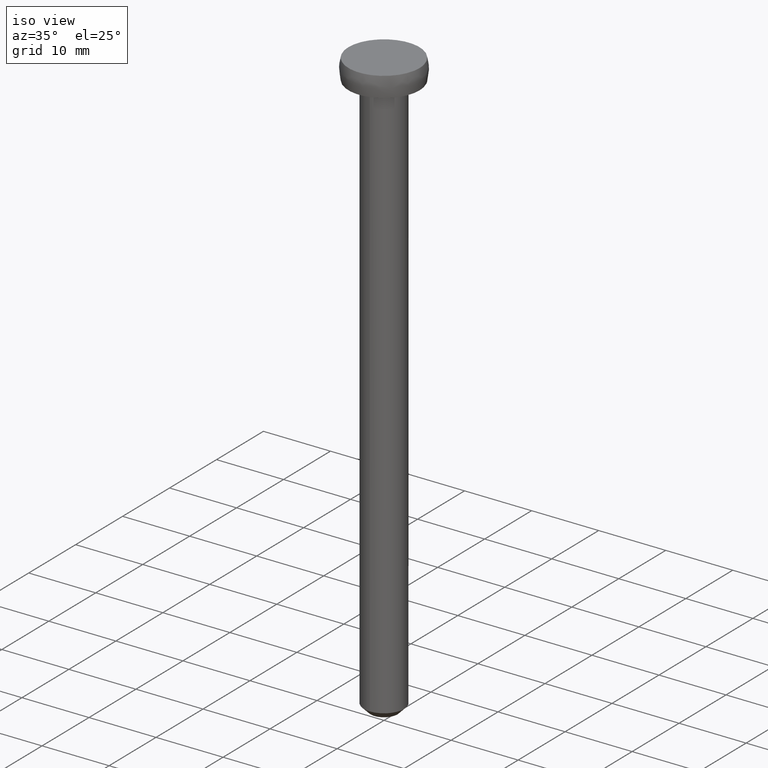
[diagram: clean part render]
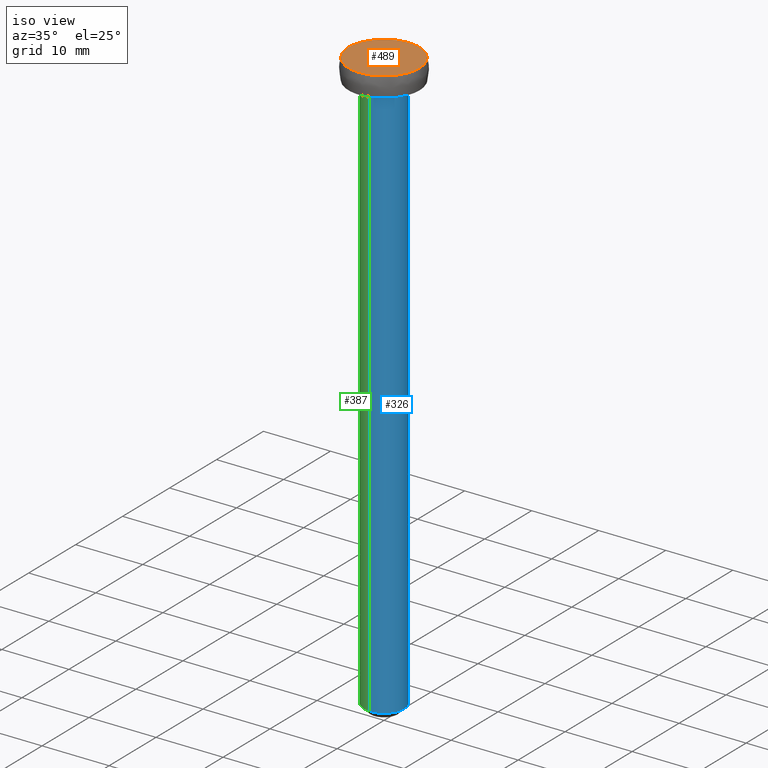
[diagram: same view with three faces highlighted in distinct colors, each labeled with its STEP entity id]
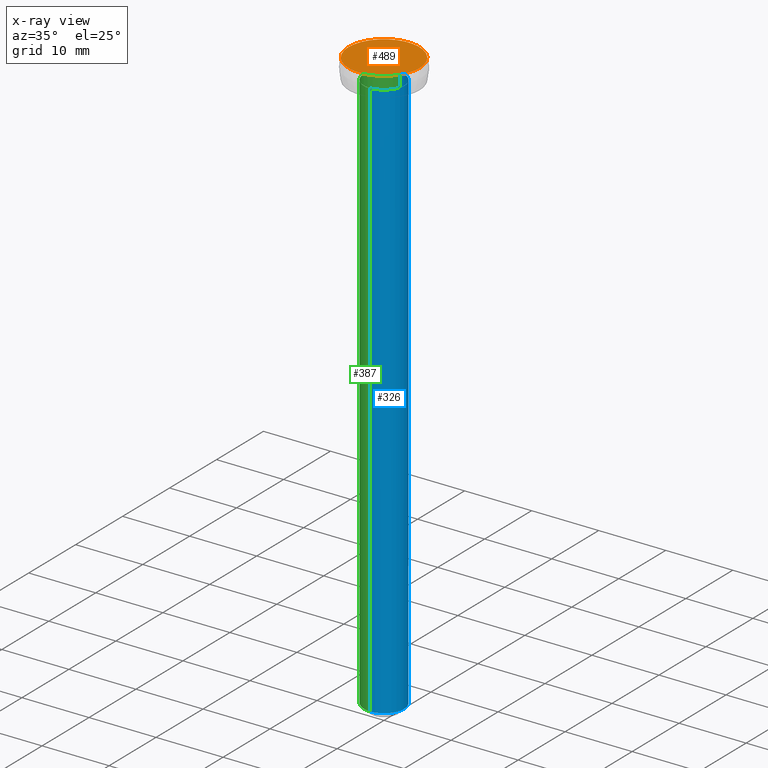
[diagram: x-ray of the same camera — body ghosted, the three highlighted faces saturated]
A machine part, iso view with three faces highlighted in distinct colors.
The next image is the same camera in x-ray (body ghosted, the three faces saturated) — at least one of them is partly hidden behind the body in this view.
Their STEP definitions:

[orange] entity #489 — the highlighted face is a freeform B-spline surface patch.
#448=CARTESIAN_POINT('',(-5.820123029288085,-5.820123029288009,88.0));
#449=CARTESIAN_POINT('',(5.820123313146373,-5.820123029288009,88.0));
#450=CARTESIAN_POINT('',(-5.820123029288085,5.820123313146296,88.0));
#451=CARTESIAN_POINT('',(5.820123313146373,5.820123313146296,88.0));
#452=B_SPLINE_SURFACE_WITH_KNOTS('',1,1,((#448,#450),(#449,#451)),.UNSPECIFIED.,.F.,.F.,.U.,(2,2),(2,2),(0.0,11.640246342434461),(0.0,11.640246342434310),.UNSPECIFIED.);
#453=CARTESIAN_POINT('',(5.291502000000000,0.0,88.0));
#454=VERTEX_POINT('',#453);
#455=CARTESIAN_POINT('',(-5.291502000000000,0.0,88.0));
#456=VERTEX_POINT('',#455);
#457=CARTESIAN_POINT('',(5.291502000000000,0.0,88.0));
#458=CARTESIAN_POINT('',(5.291502000000000,-5.291502000000000,88.0));
#459=CARTESIAN_POINT('',(0.0,-5.291502000000000,88.0));
#460=CARTESIAN_POINT('',(-5.291502000000000,-5.291502000000000,88.0));
#461=CARTESIAN_POINT('',(-5.291502000000000,0.0,88.0));
#469=(BOUNDED_CURVE()B_SPLINE_CURVE(2,(#457,#458,#459,#460,#461),.UNSPECIFIED.,.F.,.U.)B_SPLINE_CURVE_WITH_KNOTS((3,2,3),(0.500000000000000,0.750000000000000,1.0),.UNSPECIFIED.)CURVE()GEOMETRIC_REPRESENTATION_ITEM()RATIONAL_B_SPLINE_CURVE((1.0,0.707106781186548,1.0,0.707106781186548,1.0))REPRESENTATION_ITEM(''));
#470=EDGE_CURVE('',#454,#456,#469,.T.);
#471=ORIENTED_EDGE('',*,*,#470,.F.);
#472=CARTESIAN_POINT('',(-5.291502000000000,0.0,88.0));
#473=CARTESIAN_POINT('',(-5.291502000000000,5.291502000000000,88.0));
#474=CARTESIAN_POINT('',(0.0,5.291502000000000,88.0));
#475=CARTESIAN_POINT('',(5.291502000000000,5.291502000000000,88.0));
#476=CARTESIAN_POINT('',(5.291502000000000,0.0,88.0));
#484=(BOUNDED_CURVE()B_SPLINE_CURVE(2,(#472,#473,#474,#475,#476),.UNSPECIFIED.,.F.,.U.)B_SPLINE_CURVE_WITH_KNOTS((3,2,3),(0.0,0.250000000000000,0.500000000000000),.UNSPECIFIED.)CURVE()GEOMETRIC_REPRESENTATION_ITEM()RATIONAL_B_SPLINE_CURVE((1.0,0.707106781186548,1.0,0.707106781186548,1.0))REPRESENTATION_ITEM(''));
#485=EDGE_CURVE('',#456,#454,#484,.T.);
#486=ORIENTED_EDGE('',*,*,#485,.F.);
#487=EDGE_LOOP('',(#471,#486));
#488=FACE_OUTER_BOUND('',#487,.T.);
#489=ADVANCED_FACE('',(#488),#452,.T.);

[blue] entity #326 — the highlighted face is a freeform B-spline surface patch.
#150=CARTESIAN_POINT('',(0.372384006447590,2.976798641450584,1.000000000000000));
#151=VERTEX_POINT('',#150);
#167=CARTESIAN_POINT('',(3.0,0.0,1.0));
#168=VERTEX_POINT('',#167);
#169=CARTESIAN_POINT('',(3.0,0.0,1.0));
#170=CARTESIAN_POINT('',(3.0,2.648095800077549,1.0));
#171=CARTESIAN_POINT('',(0.372384006447590,2.976798641450584,1.000000000000000));
#179=(BOUNDED_CURVE()B_SPLINE_CURVE(2,(#169,#170,#171),.UNSPECIFIED.,.F.,.U.)B_SPLINE_CURVE_WITH_KNOTS((3,3),(0.500000000000000,0.728526071005719),.UNSPECIFIED.)CURVE()GEOMETRIC_REPRESENTATION_ITEM()RATIONAL_B_SPLINE_CURVE((1.0,0.732265053921373,0.954005430228960))REPRESENTATION_ITEM(''));
#180=EDGE_CURVE('',#168,#151,#179,.T.);
#182=CARTESIAN_POINT('',(-0.026179606802574,-2.999885769189831,1.000000000000000));
#183=VERTEX_POINT('',#182);
#184=CARTESIAN_POINT('',(-0.026179606802574,-2.999885769189831,1.000000000000000));
#185=CARTESIAN_POINT('',(-0.013090052769574,-3.000000000000000,1.0));
#186=CARTESIAN_POINT('',(0.0,-3.0,1.0));
#187=CARTESIAN_POINT('',(3.0,-3.0,1.0));
#188=CARTESIAN_POINT('',(3.0,0.0,1.0));
#196=(BOUNDED_CURVE()B_SPLINE_CURVE(2,(#184,#185,#186,#187,#188),.UNSPECIFIED.,.F.,.U.)B_SPLINE_CURVE_WITH_KNOTS((3,2,3),(0.248460105628908,0.250000000000000,0.500000000000000),.UNSPECIFIED.)CURVE()GEOMETRIC_REPRESENTATION_ITEM()RATIONAL_B_SPLINE_CURVE((0.996414028016849,0.998195901524072,1.0,0.707106781186548,1.0))REPRESENTATION_ITEM(''));
#197=EDGE_CURVE('',#183,#168,#196,.T.);
#260=CARTESIAN_POINT('',(0.372384006239488,2.976798641476615,87.100000000000023));
#261=CARTESIAN_POINT('',(3.023198491507334,2.645193774399663,87.100000000000023));
#262=CARTESIAN_POINT('',(2.999885769192513,-0.026179606495122,87.100000000000023));
#263=CARTESIAN_POINT('',(2.973706162697392,-3.026065375687634,87.100000000000023));
#264=CARTESIAN_POINT('',(-0.026179606495122,-2.999885769192513,87.100000000000023));
#265=CARTESIAN_POINT('',(0.372384006239488,2.976798641476615,-1.152500000000004));
#266=CARTESIAN_POINT('',(3.023198491507334,2.645193774399663,-1.152500000000003));
#267=CARTESIAN_POINT('',(2.999885769192513,-0.026179606495122,-1.152500000000003));
#268=CARTESIAN_POINT('',(2.973706162697392,-3.026065375687634,-1.152500000000003));
#269=CARTESIAN_POINT('',(-0.026179606495122,-2.999885769192513,-1.152500000000003));
#277=(BOUNDED_SURFACE()B_SPLINE_SURFACE(2,1,((#260,#265),(#261,#266),(#262,#267),(#263,#268),(#264,#269)),.UNSPECIFIED.,.F.,.F.,.U.)B_SPLINE_SURFACE_WITH_KNOTS((3,2,3),(2,2),(0.0,4.572917728598967,9.543480477076107),(0.0,88.252500000000040),.UNSPECIFIED.)GEOMETRIC_REPRESENTATION_ITEM()RATIONAL_B_SPLINE_SURFACE(((0.956886118190660,0.956886118190660),(0.730538238691624,0.730538238691624),(1.0,1.0),(0.707106781186548,0.707106781186548),(1.0,1.0)))REPRESENTATION_ITEM('')SURFACE());
#278=CARTESIAN_POINT('',(0.372384006388623,2.976798641457960,85.0));
#279=VERTEX_POINT('',#278);
#280=CARTESIAN_POINT('',(3.0,0.0,85.0));
#281=VERTEX_POINT('',#280);
#282=CARTESIAN_POINT('',(0.372384006388623,2.976798641457960,85.0));
#283=CARTESIAN_POINT('',(3.000000000000000,2.648095800183283,85.0));
#284=CARTESIAN_POINT('',(3.0,0.0,85.0));
#292=(BOUNDED_CURVE()B_SPLINE_CURVE(2,(#282,#283,#284),.UNSPECIFIED.,.F.,.U.)B_SPLINE_CURVE_WITH_KNOTS((3,3),(0.271473928987599,0.500000000000000),.UNSPECIFIED.)CURVE()GEOMETRIC_REPRESENTATION_ITEM()RATIONAL_B_SPLINE_CURVE((0.954005430241926,0.732265053913545,1.0))REPRESENTATION_ITEM(''));
#293=EDGE_CURVE('',#279,#281,#292,.T.);
#294=ORIENTED_EDGE('',*,*,#293,.T.);
#295=CARTESIAN_POINT('',(-0.026179606832162,-2.999885769189572,85.0));
#296=VERTEX_POINT('',#295);
#297=CARTESIAN_POINT('',(3.0,0.0,85.0));
#298=CARTESIAN_POINT('',(3.0,-3.0,85.0));
#299=CARTESIAN_POINT('',(0.0,-3.0,85.0));
#300=CARTESIAN_POINT('',(-0.013090052799159,-3.000000000000000,85.000000000000014));
#301=CARTESIAN_POINT('',(-0.026179606832162,-2.999885769189572,85.0));
#309=(BOUNDED_CURVE()B_SPLINE_CURVE(2,(#297,#298,#299,#300,#301),.UNSPECIFIED.,.F.,.U.)B_SPLINE_CURVE_WITH_KNOTS((3,2,3),(0.500000000000000,0.750000000000000,0.751539894374566),.UNSPECIFIED.)CURVE()GEOMETRIC_REPRESENTATION_ITEM()RATIONAL_B_SPLINE_CURVE((1.0,0.707106781186548,1.0,0.998195901520002,0.996414028008809))REPRESENTATION_ITEM(''));
#310=EDGE_CURVE('',#281,#296,#309,.T.);
#311=ORIENTED_EDGE('',*,*,#310,.T.);
#312=CARTESIAN_POINT('',(-0.026179606832162,-2.999885769189572,85.0));
#313=CARTESIAN_POINT('',(-0.026179606802574,-2.999885769189831,1.000000000000000));
#314=QUASI_UNIFORM_CURVE('',1,(#312,#313),.UNSPECIFIED.,.F.,.U.);
#315=EDGE_CURVE('',#296,#183,#314,.T.);
#316=ORIENTED_EDGE('',*,*,#315,.T.);
#317=ORIENTED_EDGE('',*,*,#197,.T.);
#318=ORIENTED_EDGE('',*,*,#180,.T.);
#319=CARTESIAN_POINT('',(0.372384006388623,2.976798641457960,85.0));
#320=CARTESIAN_POINT('',(0.372384006447590,2.976798641450584,1.000000000000000));
#321=QUASI_UNIFORM_CURVE('',1,(#319,#320),.UNSPECIFIED.,.F.,.U.);
#322=EDGE_CURVE('',#279,#151,#321,.T.);
#323=ORIENTED_EDGE('',*,*,#322,.F.);
#324=EDGE_LOOP('',(#294,#311,#316,#317,#318,#323));
#325=FACE_OUTER_BOUND('',#324,.T.);
#326=ADVANCED_FACE('',(#325),#277,.T.);

[green] entity #387 — the highlighted face is a freeform B-spline surface patch.
#70=CARTESIAN_POINT('',(-2.922654459458321,0.676824136001583,1.000000000077650));
#71=VERTEX_POINT('',#70);
#72=CARTESIAN_POINT('',(-3.0,0.0,1.0));
#73=VERTEX_POINT('',#72);
#74=CARTESIAN_POINT('',(-2.922654459458320,0.676824136001583,1.000000000077650));
#75=CARTESIAN_POINT('',(-3.0,0.342831482726698,1.0));
#76=CARTESIAN_POINT('',(-3.0,0.0,1.0));
#84=(BOUNDED_CURVE()B_SPLINE_CURVE(2,(#74,#75,#76),.UNSPECIFIED.,.F.,.U.)B_SPLINE_CURVE_WITH_KNOTS((3,3),(0.961422971710747,1.0),.UNSPECIFIED.)CURVE()GEOMETRIC_REPRESENTATION_ITEM()RATIONAL_B_SPLINE_CURVE((0.923556557323127,0.954804200048412,1.0))REPRESENTATION_ITEM(''));
#85=EDGE_CURVE('',#71,#73,#84,.T.);
#143=CARTESIAN_POINT('',(-0.026179607927182,2.999885769374393,1.000000000194370));
#144=VERTEX_POINT('',#143);
#150=CARTESIAN_POINT('',(0.372384006447590,2.976798641450584,1.000000000000000));
#151=VERTEX_POINT('',#150);
#152=CARTESIAN_POINT('',(0.372384006447590,2.976798641450585,1.000000000000000));
#153=CARTESIAN_POINT('',(0.186914782811021,3.000000000000000,1.0));
#154=CARTESIAN_POINT('',(0.0,3.0,1.0));
#155=CARTESIAN_POINT('',(-0.013090053892553,3.0,1.0));
#156=CARTESIAN_POINT('',(-0.026179607927182,2.999885769374393,1.000000000194370));
#164=(BOUNDED_CURVE()B_SPLINE_CURVE(2,(#152,#153,#154,#155,#156),.UNSPECIFIED.,.F.,.U.)B_SPLINE_CURVE_WITH_KNOTS((3,2,3),(0.728526071005719,0.750000000000000,0.751539894502959),.UNSPECIFIED.)CURVE()GEOMETRIC_REPRESENTATION_ITEM()RATIONAL_B_SPLINE_CURVE((0.954005430228960,0.974841727265175,1.0,0.998195901369580,0.996414027711671))REPRESENTATION_ITEM(''));
#165=EDGE_CURVE('',#151,#144,#164,.T.);
#182=CARTESIAN_POINT('',(-0.026179606802574,-2.999885769189831,1.000000000000000));
#183=VERTEX_POINT('',#182);
#199=CARTESIAN_POINT('',(-3.0,0.0,1.0));
#200=CARTESIAN_POINT('',(-3.000000000000000,-2.973933631175326,1.0));
#201=CARTESIAN_POINT('',(-0.026179606802574,-2.999885769189830,1.000000000000000));
#209=(BOUNDED_CURVE()B_SPLINE_CURVE(2,(#199,#200,#201),.UNSPECIFIED.,.F.,.U.)B_SPLINE_CURVE_WITH_KNOTS((3,3),(0.0,0.248460105628908),.UNSPECIFIED.)CURVE()GEOMETRIC_REPRESENTATION_ITEM()RATIONAL_B_SPLINE_CURVE((1.0,0.708910879662475,0.996414028016849))REPRESENTATION_ITEM(''));
#210=EDGE_CURVE('',#73,#183,#209,.T.);
#229=CARTESIAN_POINT('',(-0.026179607927182,2.999885769374393,1.000000000194370));
#230=CARTESIAN_POINT('',(-2.389459254875564,2.979261737894684,1.0));
#231=CARTESIAN_POINT('',(-2.922654459458321,0.676824136001583,1.000000000077650));
#239=(BOUNDED_CURVE()B_SPLINE_CURVE(2,(#229,#230,#231),.UNSPECIFIED.,.F.,.U.)B_SPLINE_CURVE_WITH_KNOTS((3,3),(0.751539894502959,0.961422971710748),.UNSPECIFIED.)CURVE()GEOMETRIC_REPRESENTATION_ITEM()RATIONAL_B_SPLINE_CURVE((0.996414027711672,0.753549905657335,0.923556557323128))REPRESENTATION_ITEM(''));
#240=EDGE_CURVE('',#144,#71,#239,.T.);
#278=CARTESIAN_POINT('',(0.372384006388623,2.976798641457960,85.0));
#279=VERTEX_POINT('',#278);
#295=CARTESIAN_POINT('',(-0.026179606832162,-2.999885769189572,85.0));
#296=VERTEX_POINT('',#295);
#312=CARTESIAN_POINT('',(-0.026179606832162,-2.999885769189572,85.0));
#313=CARTESIAN_POINT('',(-0.026179606802574,-2.999885769189831,1.000000000000000));
#314=QUASI_UNIFORM_CURVE('',1,(#312,#313),.UNSPECIFIED.,.F.,.U.);
#315=EDGE_CURVE('',#296,#183,#314,.T.);
#319=CARTESIAN_POINT('',(0.372384006388623,2.976798641457960,85.0));
#320=CARTESIAN_POINT('',(0.372384006447590,2.976798641450584,1.000000000000000));
#321=QUASI_UNIFORM_CURVE('',1,(#319,#320),.UNSPECIFIED.,.F.,.U.);
#322=EDGE_CURVE('',#279,#151,#321,.T.);
#327=CARTESIAN_POINT('',(-0.026179606495122,-2.999885769192513,87.100000000000023));
#328=CARTESIAN_POINT('',(-3.026065375687634,-2.973706162697392,87.100000000000023));
#329=CARTESIAN_POINT('',(-2.999885769192513,0.026179606495122,87.100000000000023));
#330=CARTESIAN_POINT('',(-2.973706162697392,3.026065375687634,87.100000000000023));
#331=CARTESIAN_POINT('',(0.026179606495122,2.999885769192513,87.100000000000023));
#332=CARTESIAN_POINT('',(0.199950476874521,2.998369293780826,87.100000000000023));
#333=CARTESIAN_POINT('',(0.372384006239488,2.976798641476615,87.100000000000023));
#334=CARTESIAN_POINT('',(-0.026179606495122,-2.999885769192513,-1.152500000000003));
#335=CARTESIAN_POINT('',(-3.026065375687634,-2.973706162697392,-1.152500000000003));
#336=CARTESIAN_POINT('',(-2.999885769192513,0.026179606495122,-1.152500000000003));
#337=CARTESIAN_POINT('',(-2.973706162697392,3.026065375687634,-1.152500000000003));
#338=CARTESIAN_POINT('',(0.026179606495122,2.999885769192513,-1.152500000000003));
#339=CARTESIAN_POINT('',(0.199950476874521,2.998369293780826,-1.152500000000003));
#340=CARTESIAN_POINT('',(0.372384006239488,2.976798641476615,-1.152500000000004));
#348=(BOUNDED_SURFACE()B_SPLINE_SURFACE(2,1,((#327,#334),(#328,#335),(#329,#336),(#330,#337),(#331,#338),(#332,#339),(#333,#340)),.UNSPECIFIED.,.F.,.F.,.U.)B_SPLINE_SURFACE_WITH_KNOTS((3,2,2,3),(2,2),(0.0,4.970562748477139,9.941125496954278,10.338770516832451),(0.0,88.252500000000040),.UNSPECIFIED.)GEOMETRIC_REPRESENTATION_ITEM()RATIONAL_B_SPLINE_SURFACE(((1.0,1.0),(0.707106781186548,0.707106781186548),(1.0,1.0),(0.707106781186548,0.707106781186548),(1.0,1.0),(0.976568542494924,0.976568542494924),(0.956886118190660,0.956886118190660)))REPRESENTATION_ITEM('')SURFACE());
#349=CARTESIAN_POINT('',(-3.0,0.0,85.0));
#350=VERTEX_POINT('',#349);
#351=CARTESIAN_POINT('',(-3.0,0.0,85.0));
#352=CARTESIAN_POINT('',(-3.0,3.0,85.0));
#353=CARTESIAN_POINT('',(0.0,3.0,85.0));
#354=CARTESIAN_POINT('',(0.186914782751365,3.000000000000001,85.0));
#355=CARTESIAN_POINT('',(0.372384006388623,2.976798641457961,85.0));
#363=(BOUNDED_CURVE()B_SPLINE_CURVE(2,(#351,#352,#353,#354,#355),.UNSPECIFIED.,.F.,.U.)B_SPLINE_CURVE_WITH_KNOTS((3,2,3),(0.0,0.250000000000000,0.271473928987599),.UNSPECIFIED.)CURVE()GEOMETRIC_REPRESENTATION_ITEM()RATIONAL_B_SPLINE_CURVE((1.0,0.707106781186548,1.0,0.974841727273002,0.954005430241926))REPRESENTATION_ITEM(''));
#364=EDGE_CURVE('',#350,#279,#363,.T.);
#365=ORIENTED_EDGE('',*,*,#364,.T.);
#366=ORIENTED_EDGE('',*,*,#322,.T.);
#367=ORIENTED_EDGE('',*,*,#165,.T.);
#368=ORIENTED_EDGE('',*,*,#240,.T.);
#369=ORIENTED_EDGE('',*,*,#85,.T.);
#370=ORIENTED_EDGE('',*,*,#210,.T.);
#371=ORIENTED_EDGE('',*,*,#315,.F.);
#372=CARTESIAN_POINT('',(-0.026179606832162,-2.999885769189572,85.000000000000014));
#373=CARTESIAN_POINT('',(-3.000000000000000,-2.973933631116660,85.0));
#374=CARTESIAN_POINT('',(-3.0,0.0,85.0));
#382=(BOUNDED_CURVE()B_SPLINE_CURVE(2,(#372,#373,#374),.UNSPECIFIED.,.F.,.U.)B_SPLINE_CURVE_WITH_KNOTS((3,3),(0.751539894374567,1.0),.UNSPECIFIED.)CURVE()GEOMETRIC_REPRESENTATION_ITEM()RATIONAL_B_SPLINE_CURVE((0.996414028008807,0.708910879666546,1.0))REPRESENTATION_ITEM(''));
#383=EDGE_CURVE('',#296,#350,#382,.T.);
#384=ORIENTED_EDGE('',*,*,#383,.T.);
#385=EDGE_LOOP('',(#365,#366,#367,#368,#369,#370,#371,#384));
#386=FACE_OUTER_BOUND('',#385,.T.);
#387=ADVANCED_FACE('',(#386),#348,.T.);